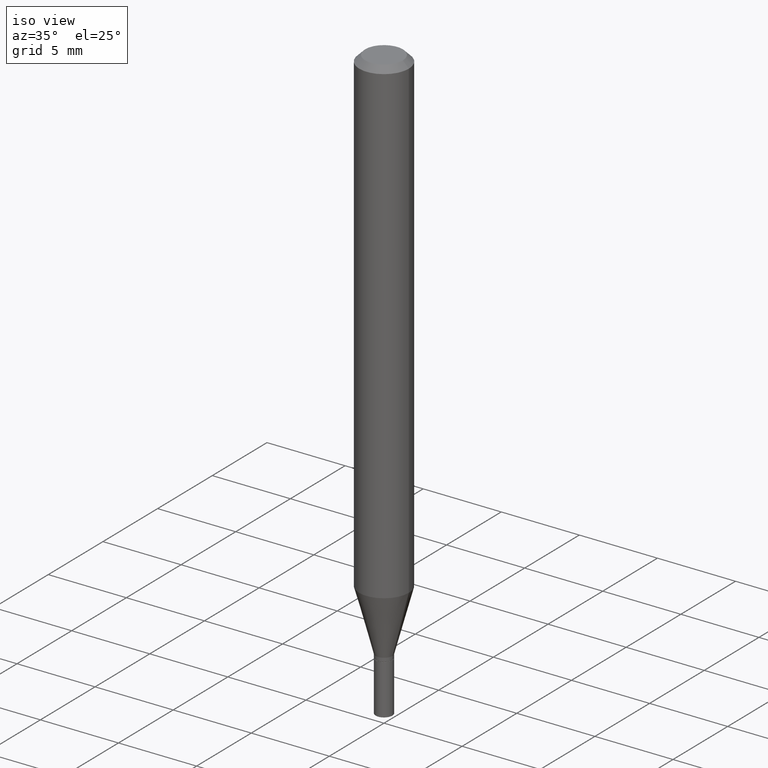
[diagram: clean part render]
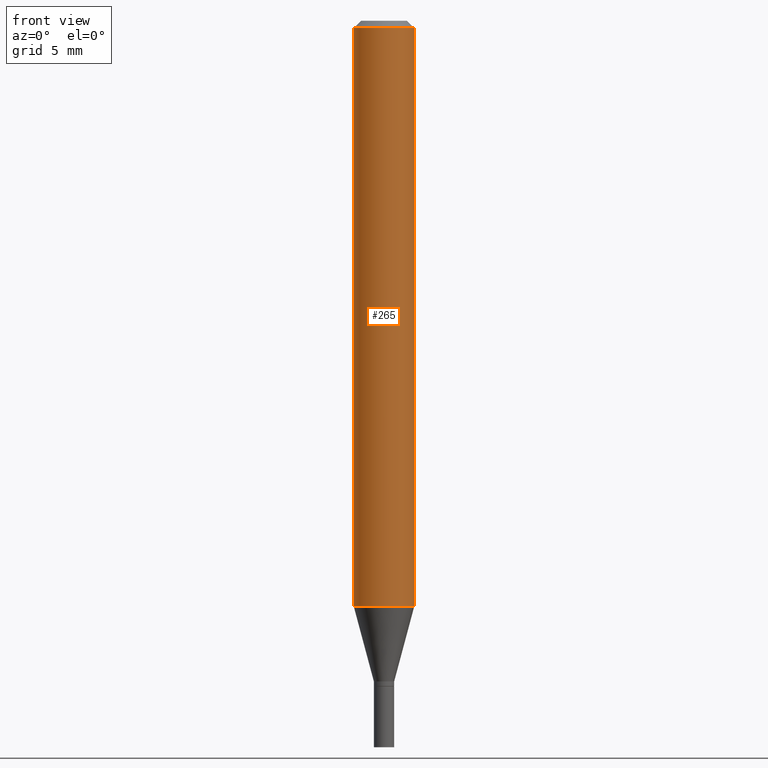
[diagram: tour spotlight — one face highlighted and labeled with its STEP entity id]
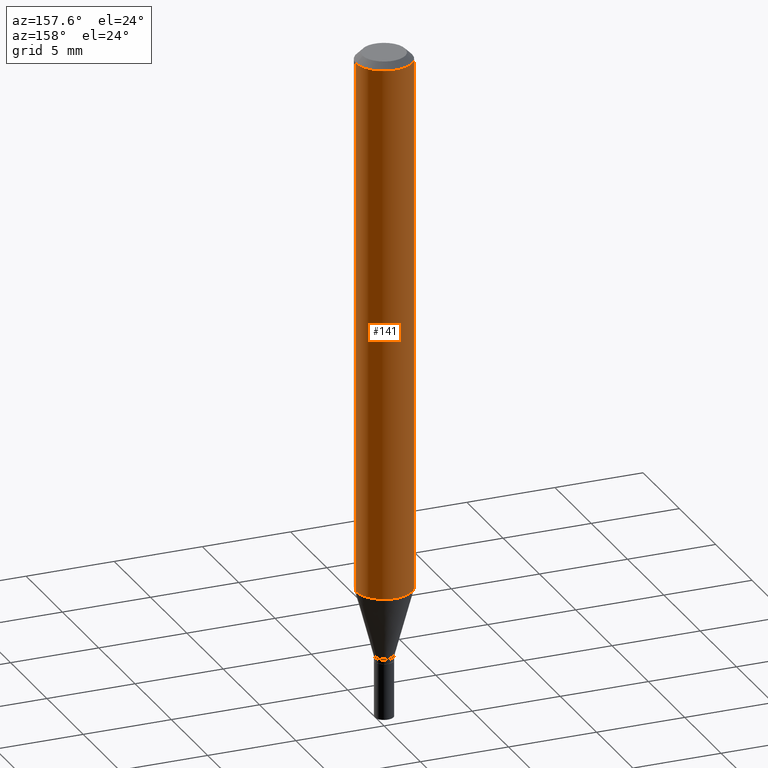
[diagram: tour spotlight — one face highlighted and labeled with its STEP entity id]
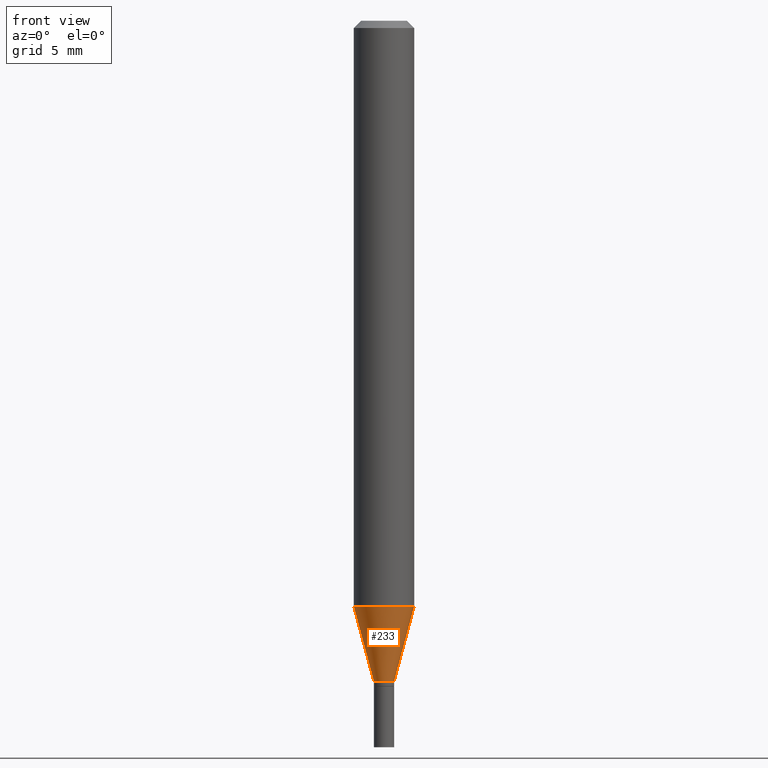
[diagram: tour spotlight — one face highlighted and labeled with its STEP entity id]
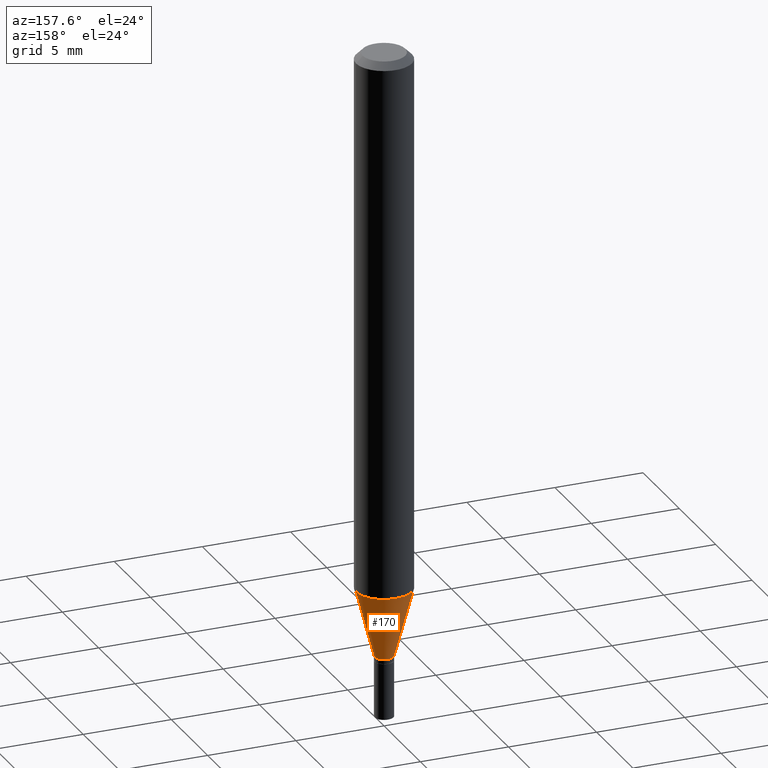
[diagram: tour spotlight — one face highlighted and labeled with its STEP entity id]
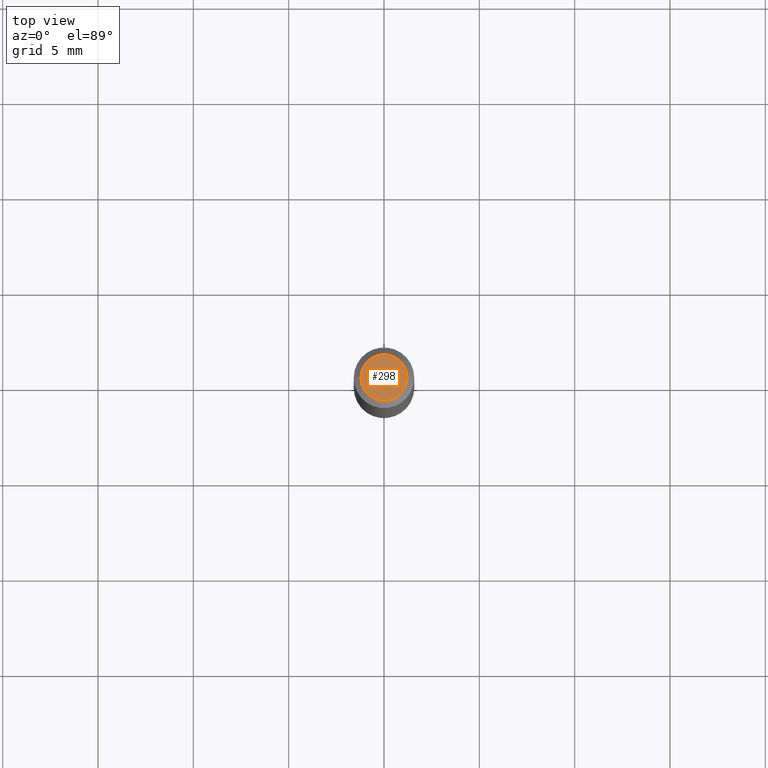
[diagram: tour spotlight — one face highlighted and labeled with its STEP entity id]
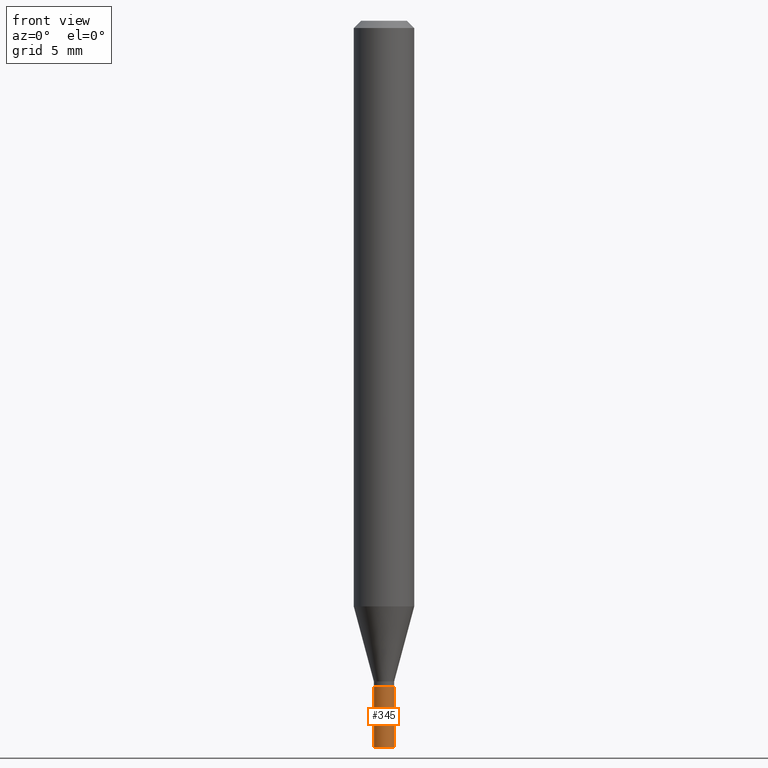
[diagram: tour spotlight — one face highlighted and labeled with its STEP entity id]
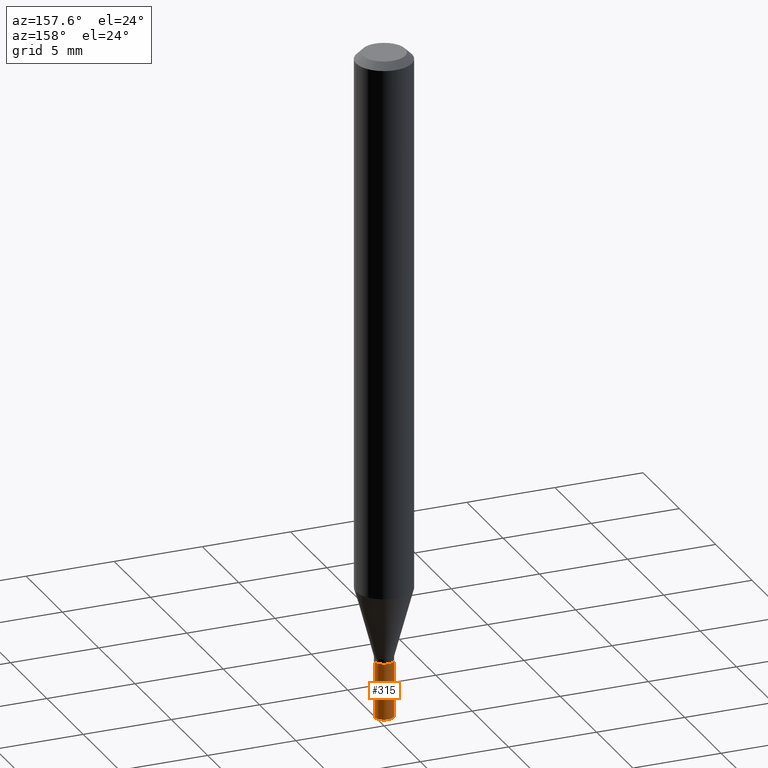
[diagram: tour spotlight — one face highlighted and labeled with its STEP entity id]
A machine part: a face-by-face anatomy tour. The part has 16 B-rep faces; the first image is the clean iso view, then the 7 largest visible faces are spotlighted one at a time (largest first), each with its STEP entity span.

Face 1 — front view, entity #265. In plain terms, the highlighted cylindrical surface (edge-blend (fillet) strip) has radius 1.5875 mm, axis along (-0, 0, 1).
Definition (entity closure, byte-faithful):
#22 = DIRECTION ( 'NONE',  ( -2.445468806185136877E-29, 3.491481338843145188E-15, 1.000000000000000000 ) ) ;
#35 = DIRECTION ( 'NONE',  ( -2.445468806185136597E-29, 3.491481338843145583E-15, 1.000000000000000000 ) ) ;
#40 = ORIENTED_EDGE ( 'NONE', *, *, #459, .F. ) ;
#58 = AXIS2_PLACEMENT_3D ( 'NONE', #391, #70, #102 ) ;
#60 = DIRECTION ( 'NONE',  ( -2.445468806185136597E-29, 3.491481338843145583E-15, 1.000000000000000000 ) ) ;
#70 = DIRECTION ( 'NONE',  ( -2.445468806185136597E-29, 3.491481338843145583E-15, 1.000000000000000000 ) ) ;
#82 = EDGE_CURVE ( 'NONE', #144, #234, #417, .T. ) ;
#102 = DIRECTION ( 'NONE',  ( 1.000000000000000000, -6.982962677686266711E-15, 4.876176775795935793E-29 ) ) ;
#106 = DIRECTION ( 'NONE',  ( 1.000000000000000000, -6.982962677686270655E-15, 0.000000000000000000 ) ) ;
#126 = CIRCLE ( 'NONE', #317, 0.06250000000000000000 ) ;
#129 = DIRECTION ( 'NONE',  ( -2.445468806185136877E-29, 3.491481338843145188E-15, 1.000000000000000000 ) ) ;
#144 = VERTEX_POINT ( 'NONE', #384 ) ;
#163 = VECTOR ( 'NONE', #22, 39.37007874015748143 ) ;
#178 = CARTESIAN_POINT ( 'NONE',  ( 0.06250000000000000000, -4.888073874380388472E-16, -0.01499999999999999944 ) ) ;
#184 = EDGE_CURVE ( 'NONE', #432, #287, #272, .T. ) ;
#213 = VECTOR ( 'NONE', #129, 39.37007874015748143 ) ;
#214 = CYLINDRICAL_SURFACE ( 'NONE', #58, 0.06250000000000000000 ) ;
#218 = CARTESIAN_POINT ( 'NONE',  ( -0.06250000000000000000, -1.692906668964781127E-15, -0.01499999999999999944 ) ) ;
#234 = VERTEX_POINT ( 'NONE', #178 ) ;
#265 = ADVANCED_FACE ( 'NONE', ( #427 ), #214, .T. ) ;
#272 = LINE ( 'NONE', #458, #213 ) ;
#275 = CARTESIAN_POINT ( 'NONE',  ( 3.668203209277705088E-31, -5.237222008264718399E-17, -0.01499999999999999944 ) ) ;
#282 = EDGE_CURVE ( 'NONE', #432, #144, #126, .T. ) ;
#287 = VERTEX_POINT ( 'NONE', #218 ) ;
#301 = AXIS2_PLACEMENT_3D ( 'NONE', #275, #60, #313 ) ;
#309 = CARTESIAN_POINT ( 'NONE',  ( 0.06250000000000000000, -4.364351673553916694E-16, 3.047610484872459871E-30 ) ) ;
#313 = DIRECTION ( 'NONE',  ( 1.000000000000000000, -6.982962677686266711E-15, 0.000000000000000000 ) ) ;
#317 = AXIS2_PLACEMENT_3D ( 'NONE', #431, #35, #106 ) ;
#362 = ORIENTED_EDGE ( 'NONE', *, *, #82, .T. ) ;
#384 = CARTESIAN_POINT ( 'NONE',  ( 0.06249999999999999306, -4.658054704902432076E-15, -1.209119891485891607 ) ) ;
#386 = CARTESIAN_POINT ( 'NONE',  ( -0.06249999999999999306, -3.777530327696978579E-15, -1.209119891485891607 ) ) ;
#391 = CARTESIAN_POINT ( 'NONE',  ( 0.000000000000000000, 0.000000000000000000, 0.000000000000000000 ) ) ;
#406 = EDGE_LOOP ( 'NONE', ( #447, #419, #362, #40 ) ) ;
#417 = LINE ( 'NONE', #309, #163 ) ;
#419 = ORIENTED_EDGE ( 'NONE', *, *, #282, .T. ) ;
#427 = FACE_OUTER_BOUND ( 'NONE', #406, .T. ) ;
#431 = CARTESIAN_POINT ( 'NONE',  ( 2.956864977566705326E-29, -4.221619537547040407E-15, -1.209119891485891607 ) ) ;
#432 = VERTEX_POINT ( 'NONE', #386 ) ;
#447 = ORIENTED_EDGE ( 'NONE', *, *, #184, .F. ) ;
#451 = CIRCLE ( 'NONE', #301, 0.06250000000000000000 ) ;
#458 = CARTESIAN_POINT ( 'NONE',  ( -0.06250000000000000000, 4.440892098500626162E-16, -3.074334431409316114E-30 ) ) ;
#459 = EDGE_CURVE ( 'NONE', #287, #234, #451, .T. ) ;

Face 2 — auxiliary view, entity #141. In plain terms, the highlighted cylindrical surface (edge-blend (fillet) strip) has radius 1.5875 mm, axis along (-0, 0, 1).
Definition (entity closure, byte-faithful):
#6 = DIRECTION ( 'NONE',  ( -2.445468806185136597E-29, 3.491481338843145583E-15, 1.000000000000000000 ) ) ;
#19 = EDGE_CURVE ( 'NONE', #234, #287, #138, .T. ) ;
#22 = DIRECTION ( 'NONE',  ( -2.445468806185136877E-29, 3.491481338843145188E-15, 1.000000000000000000 ) ) ;
#82 = EDGE_CURVE ( 'NONE', #144, #234, #417, .T. ) ;
#103 = AXIS2_PLACEMENT_3D ( 'NONE', #159, #167, #343 ) ;
#129 = DIRECTION ( 'NONE',  ( -2.445468806185136877E-29, 3.491481338843145188E-15, 1.000000000000000000 ) ) ;
#138 = CIRCLE ( 'NONE', #393, 0.06250000000000000000 ) ;
#141 = ADVANCED_FACE ( 'NONE', ( #202 ), #236, .T. ) ;
#144 = VERTEX_POINT ( 'NONE', #384 ) ;
#146 = AXIS2_PLACEMENT_3D ( 'NONE', #166, #311, #452 ) ;
#149 = ORIENTED_EDGE ( 'NONE', *, *, #19, .F. ) ;
#159 = CARTESIAN_POINT ( 'NONE',  ( 0.000000000000000000, 0.000000000000000000, 0.000000000000000000 ) ) ;
#163 = VECTOR ( 'NONE', #22, 39.37007874015748143 ) ;
#166 = CARTESIAN_POINT ( 'NONE',  ( 2.956864977566705326E-29, -4.221619537547040407E-15, -1.209119891485891607 ) ) ;
#167 = DIRECTION ( 'NONE',  ( -2.445468806185136597E-29, 3.491481338843145583E-15, 1.000000000000000000 ) ) ;
#178 = CARTESIAN_POINT ( 'NONE',  ( 0.06250000000000000000, -4.888073874380388472E-16, -0.01499999999999999944 ) ) ;
#184 = EDGE_CURVE ( 'NONE', #432, #287, #272, .T. ) ;
#202 = FACE_OUTER_BOUND ( 'NONE', #267, .T. ) ;
#203 = ORIENTED_EDGE ( 'NONE', *, *, #457, .T. ) ;
#213 = VECTOR ( 'NONE', #129, 39.37007874015748143 ) ;
#218 = CARTESIAN_POINT ( 'NONE',  ( -0.06250000000000000000, -1.692906668964781127E-15, -0.01499999999999999944 ) ) ;
#232 = ORIENTED_EDGE ( 'NONE', *, *, #184, .T. ) ;
#234 = VERTEX_POINT ( 'NONE', #178 ) ;
#235 = ORIENTED_EDGE ( 'NONE', *, *, #82, .F. ) ;
#236 = CYLINDRICAL_SURFACE ( 'NONE', #103, 0.06250000000000000000 ) ;
#267 = EDGE_LOOP ( 'NONE', ( #203, #232, #149, #235 ) ) ;
#272 = LINE ( 'NONE', #458, #213 ) ;
#287 = VERTEX_POINT ( 'NONE', #218 ) ;
#295 = CIRCLE ( 'NONE', #146, 0.06250000000000000000 ) ;
#309 = CARTESIAN_POINT ( 'NONE',  ( 0.06250000000000000000, -4.364351673553916694E-16, 3.047610484872459871E-30 ) ) ;
#311 = DIRECTION ( 'NONE',  ( -2.445468806185136597E-29, 3.491481338843145583E-15, 1.000000000000000000 ) ) ;
#343 = DIRECTION ( 'NONE',  ( 1.000000000000000000, -6.982962677686266711E-15, 4.876176775795935793E-29 ) ) ;
#365 = CARTESIAN_POINT ( 'NONE',  ( 3.668203209277705088E-31, -5.237222008264718399E-17, -0.01499999999999999944 ) ) ;
#384 = CARTESIAN_POINT ( 'NONE',  ( 0.06249999999999999306, -4.658054704902432076E-15, -1.209119891485891607 ) ) ;
#386 = CARTESIAN_POINT ( 'NONE',  ( -0.06249999999999999306, -3.777530327696978579E-15, -1.209119891485891607 ) ) ;
#393 = AXIS2_PLACEMENT_3D ( 'NONE', #365, #6, #441 ) ;
#417 = LINE ( 'NONE', #309, #163 ) ;
#432 = VERTEX_POINT ( 'NONE', #386 ) ;
#441 = DIRECTION ( 'NONE',  ( 1.000000000000000000, -6.982962677686266711E-15, 0.000000000000000000 ) ) ;
#452 = DIRECTION ( 'NONE',  ( 1.000000000000000000, -6.982962677686270655E-15, 0.000000000000000000 ) ) ;
#457 = EDGE_CURVE ( 'NONE', #144, #432, #295, .T. ) ;
#458 = CARTESIAN_POINT ( 'NONE',  ( -0.06250000000000000000, 4.440892098500626162E-16, -3.074334431409316114E-30 ) ) ;

Face 3 — front view, entity #233. In plain terms, the highlighted conical surface has half-angle 15 deg.
Definition (entity closure, byte-faithful):
#3 = FACE_OUTER_BOUND ( 'NONE', #51, .T. ) ;
#8 = AXIS2_PLACEMENT_3D ( 'NONE', #279, #140, #26 ) ;
#26 = DIRECTION ( 'NONE',  ( 1.000000000000000000, -6.982962677686268288E-15, 0.000000000000000000 ) ) ;
#27 = DIRECTION ( 'NONE',  ( 0.2588190451025213501, 1.565188264969621968E-15, 0.9659258262890682012 ) ) ;
#30 = LINE ( 'NONE', #353, #88 ) ;
#35 = DIRECTION ( 'NONE',  ( -2.445468806185136597E-29, 3.491481338843145583E-15, 1.000000000000000000 ) ) ;
#51 = EDGE_LOOP ( 'NONE', ( #268, #241, #142, #225 ) ) ;
#57 = CARTESIAN_POINT ( 'NONE',  ( 0.02099999999999991804, -4.909022762413462095E-15, -1.363999999999999879 ) ) ;
#67 = CARTESIAN_POINT ( 'NONE',  ( 0.02099999999999991804, -4.909022762413462095E-15, -1.363999999999999879 ) ) ;
#73 = CONICAL_SURFACE ( 'NONE', #8, 0.02099999999999991804, 0.2617993877991500740 ) ;
#81 = VERTEX_POINT ( 'NONE', #57 ) ;
#88 = VECTOR ( 'NONE', #280, 39.37007874015747433 ) ;
#92 = DIRECTION ( 'NONE',  ( -2.445468806185136597E-29, 3.491481338843145583E-15, 1.000000000000000000 ) ) ;
#105 = LINE ( 'NONE', #67, #355 ) ;
#106 = DIRECTION ( 'NONE',  ( 1.000000000000000000, -6.982962677686270655E-15, 0.000000000000000000 ) ) ;
#109 = AXIS2_PLACEMENT_3D ( 'NONE', #135, #92, #127 ) ;
#126 = CIRCLE ( 'NONE', #317, 0.06250000000000000000 ) ;
#127 = DIRECTION ( 'NONE',  ( 1.000000000000000000, -6.982962677686268288E-15, 0.000000000000000000 ) ) ;
#135 = CARTESIAN_POINT ( 'NONE',  ( 3.335619451636526233E-29, -4.762380546182051062E-15, -1.363999999999999879 ) ) ;
#140 = DIRECTION ( 'NONE',  ( -2.445468806185136597E-29, 3.491481338843145583E-15, 1.000000000000000000 ) ) ;
#142 = ORIENTED_EDGE ( 'NONE', *, *, #336, .T. ) ;
#144 = VERTEX_POINT ( 'NONE', #384 ) ;
#177 = EDGE_CURVE ( 'NONE', #293, #81, #322, .T. ) ;
#225 = ORIENTED_EDGE ( 'NONE', *, *, #282, .F. ) ;
#233 = ADVANCED_FACE ( 'NONE', ( #3 ), #73, .T. ) ;
#240 = EDGE_CURVE ( 'NONE', #293, #432, #30, .T. ) ;
#241 = ORIENTED_EDGE ( 'NONE', *, *, #177, .T. ) ;
#268 = ORIENTED_EDGE ( 'NONE', *, *, #240, .F. ) ;
#279 = CARTESIAN_POINT ( 'NONE',  ( 3.335619451636526233E-29, -4.762380546182051062E-15, -1.363999999999999879 ) ) ;
#280 = DIRECTION ( 'NONE',  ( -0.2588190451025213501, 5.211531920934551042E-15, 0.9659258262890682012 ) ) ;
#282 = EDGE_CURVE ( 'NONE', #432, #144, #126, .T. ) ;
#293 = VERTEX_POINT ( 'NONE', #321 ) ;
#317 = AXIS2_PLACEMENT_3D ( 'NONE', #431, #35, #106 ) ;
#321 = CARTESIAN_POINT ( 'NONE',  ( -0.02099999999999991804, -4.195348449684704235E-15, -1.363999999999999879 ) ) ;
#322 = CIRCLE ( 'NONE', #109, 0.02099999999999991804 ) ;
#336 = EDGE_CURVE ( 'NONE', #81, #144, #105, .T. ) ;
#353 = CARTESIAN_POINT ( 'NONE',  ( -0.02099999999999991804, -4.613166571672430680E-15, -1.363999999999999879 ) ) ;
#355 = VECTOR ( 'NONE', #27, 39.37007874015747433 ) ;
#384 = CARTESIAN_POINT ( 'NONE',  ( 0.06249999999999999306, -4.658054704902432076E-15, -1.209119891485891607 ) ) ;
#386 = CARTESIAN_POINT ( 'NONE',  ( -0.06249999999999999306, -3.777530327696978579E-15, -1.209119891485891607 ) ) ;
#431 = CARTESIAN_POINT ( 'NONE',  ( 2.956864977566705326E-29, -4.221619537547040407E-15, -1.209119891485891607 ) ) ;
#432 = VERTEX_POINT ( 'NONE', #386 ) ;

Face 4 — auxiliary view, entity #170. In plain terms, the highlighted conical surface has half-angle 15 deg.
Definition (entity closure, byte-faithful):
#27 = DIRECTION ( 'NONE',  ( 0.2588190451025213501, 1.565188264969621968E-15, 0.9659258262890682012 ) ) ;
#30 = LINE ( 'NONE', #353, #88 ) ;
#57 = CARTESIAN_POINT ( 'NONE',  ( 0.02099999999999991804, -4.909022762413462095E-15, -1.363999999999999879 ) ) ;
#64 = DIRECTION ( 'NONE',  ( 1.000000000000000000, -6.982962677686268288E-15, 0.000000000000000000 ) ) ;
#67 = CARTESIAN_POINT ( 'NONE',  ( 0.02099999999999991804, -4.909022762413462095E-15, -1.363999999999999879 ) ) ;
#81 = VERTEX_POINT ( 'NONE', #57 ) ;
#88 = VECTOR ( 'NONE', #280, 39.37007874015747433 ) ;
#100 = DIRECTION ( 'NONE',  ( 1.000000000000000000, -6.982962677686268288E-15, 0.000000000000000000 ) ) ;
#105 = LINE ( 'NONE', #67, #355 ) ;
#122 = ORIENTED_EDGE ( 'NONE', *, *, #240, .T. ) ;
#124 = FACE_OUTER_BOUND ( 'NONE', #264, .T. ) ;
#144 = VERTEX_POINT ( 'NONE', #384 ) ;
#146 = AXIS2_PLACEMENT_3D ( 'NONE', #166, #311, #452 ) ;
#166 = CARTESIAN_POINT ( 'NONE',  ( 2.956864977566705326E-29, -4.221619537547040407E-15, -1.209119891485891607 ) ) ;
#170 = ADVANCED_FACE ( 'NONE', ( #124 ), #227, .T. ) ;
#205 = CARTESIAN_POINT ( 'NONE',  ( 3.335619451636526233E-29, -4.762380546182051062E-15, -1.363999999999999879 ) ) ;
#227 = CONICAL_SURFACE ( 'NONE', #414, 0.02099999999999991804, 0.2617993877991500740 ) ;
#230 = ORIENTED_EDGE ( 'NONE', *, *, #260, .T. ) ;
#240 = EDGE_CURVE ( 'NONE', #293, #432, #30, .T. ) ;
#260 = EDGE_CURVE ( 'NONE', #81, #293, #444, .T. ) ;
#264 = EDGE_LOOP ( 'NONE', ( #230, #122, #373, #333 ) ) ;
#270 = DIRECTION ( 'NONE',  ( -2.445468806185136597E-29, 3.491481338843145583E-15, 1.000000000000000000 ) ) ;
#280 = DIRECTION ( 'NONE',  ( -0.2588190451025213501, 5.211531920934551042E-15, 0.9659258262890682012 ) ) ;
#293 = VERTEX_POINT ( 'NONE', #321 ) ;
#295 = CIRCLE ( 'NONE', #146, 0.06250000000000000000 ) ;
#311 = DIRECTION ( 'NONE',  ( -2.445468806185136597E-29, 3.491481338843145583E-15, 1.000000000000000000 ) ) ;
#320 = CARTESIAN_POINT ( 'NONE',  ( 3.335619451636526233E-29, -4.762380546182051062E-15, -1.363999999999999879 ) ) ;
#321 = CARTESIAN_POINT ( 'NONE',  ( -0.02099999999999991804, -4.195348449684704235E-15, -1.363999999999999879 ) ) ;
#333 = ORIENTED_EDGE ( 'NONE', *, *, #336, .F. ) ;
#334 = AXIS2_PLACEMENT_3D ( 'NONE', #320, #466, #100 ) ;
#336 = EDGE_CURVE ( 'NONE', #81, #144, #105, .T. ) ;
#353 = CARTESIAN_POINT ( 'NONE',  ( -0.02099999999999991804, -4.613166571672430680E-15, -1.363999999999999879 ) ) ;
#355 = VECTOR ( 'NONE', #27, 39.37007874015747433 ) ;
#373 = ORIENTED_EDGE ( 'NONE', *, *, #457, .F. ) ;
#384 = CARTESIAN_POINT ( 'NONE',  ( 0.06249999999999999306, -4.658054704902432076E-15, -1.209119891485891607 ) ) ;
#386 = CARTESIAN_POINT ( 'NONE',  ( -0.06249999999999999306, -3.777530327696978579E-15, -1.209119891485891607 ) ) ;
#414 = AXIS2_PLACEMENT_3D ( 'NONE', #205, #270, #64 ) ;
#432 = VERTEX_POINT ( 'NONE', #386 ) ;
#444 = CIRCLE ( 'NONE', #334, 0.02099999999999991804 ) ;
#452 = DIRECTION ( 'NONE',  ( 1.000000000000000000, -6.982962677686270655E-15, 0.000000000000000000 ) ) ;
#457 = EDGE_CURVE ( 'NONE', #144, #432, #295, .T. ) ;
#466 = DIRECTION ( 'NONE',  ( -2.445468806185136597E-29, 3.491481338843145583E-15, 1.000000000000000000 ) ) ;

Face 5 — top view, entity #298. In plain terms, the highlighted planar face has unit normal (0, -0, -1).
Definition (entity closure, byte-faithful):
#10 = ORIENTED_EDGE ( 'NONE', *, *, #350, .T. ) ;
#55 = EDGE_LOOP ( 'NONE', ( #10, #195 ) ) ;
#68 = CARTESIAN_POINT ( 'NONE',  ( 4.865611903635008365E-45, -6.946804277620623666E-31, -1.989643822619527736E-16 ) ) ;
#72 = DIRECTION ( 'NONE',  ( -1.000000000000000000, 6.982962677686265922E-15, -4.876176775795935793E-29 ) ) ;
#85 = VERTEX_POINT ( 'NONE', #423 ) ;
#87 = CARTESIAN_POINT ( 'NONE',  ( 0.04749999999999999362, -4.035134999187581581E-16, -1.989643822619502098E-16 ) ) ;
#91 = EDGE_CURVE ( 'NONE', #231, #85, #300, .T. ) ;
#133 = AXIS2_PLACEMENT_3D ( 'NONE', #360, #136, #72 ) ;
#136 = DIRECTION ( 'NONE',  ( 2.438088387897960049E-29, -3.491481338843145188E-15, -1.000000000000000000 ) ) ;
#164 = AXIS2_PLACEMENT_3D ( 'NONE', #68, #216, #357 ) ;
#176 = FACE_OUTER_BOUND ( 'NONE', #55, .T. ) ;
#195 = ORIENTED_EDGE ( 'NONE', *, *, #91, .T. ) ;
#216 = DIRECTION ( 'NONE',  ( -2.445468806185136597E-29, 3.491481338843145583E-15, 1.000000000000000000 ) ) ;
#231 = VERTEX_POINT ( 'NONE', #87 ) ;
#246 = DIRECTION ( 'NONE',  ( 1.000000000000000000, -6.982962677686267499E-15, 4.852736867747366768E-29 ) ) ;
#251 = CIRCLE ( 'NONE', #164, 0.04749999999999999362 ) ;
#277 = DIRECTION ( 'NONE',  ( -2.445468806185136597E-29, 3.491481338843145583E-15, 1.000000000000000000 ) ) ;
#298 = ADVANCED_FACE ( 'NONE', ( #176 ), #325, .F. ) ;
#300 = CIRCLE ( 'NONE', #437, 0.04749999999999999362 ) ;
#316 = CARTESIAN_POINT ( 'NONE',  ( 4.865611903635008365E-45, -6.946804277620623666E-31, -1.989643822619527736E-16 ) ) ;
#325 = PLANE ( 'NONE',  #133 ) ;
#350 = EDGE_CURVE ( 'NONE', #85, #231, #251, .T. ) ;
#357 = DIRECTION ( 'NONE',  ( 1.000000000000000000, -6.982962677686267499E-15, 4.852736867747366768E-29 ) ) ;
#360 = CARTESIAN_POINT ( 'NONE',  ( 3.316907271900976096E-16, 0.04749999999999999362, -2.653275547260257586E-16 ) ) ;
#423 = CARTESIAN_POINT ( 'NONE',  ( -0.04749999999999999362, 3.578768372314206562E-16, -1.989643822619551895E-16 ) ) ;
#437 = AXIS2_PLACEMENT_3D ( 'NONE', #316, #277, #246 ) ;

Face 6 — front view, entity #345. In plain terms, the highlighted cylindrical surface (edge-blend (fillet) strip) has radius 0.5334 mm, axis along (-0, 0, 1).
Definition (entity closure, byte-faithful):
#5 = ORIENTED_EDGE ( 'NONE', *, *, #190, .T. ) ;
#11 = CARTESIAN_POINT ( 'NONE',  ( 0.02100000000000000477, -5.383864224496130787E-15, -1.500000000000000222 ) ) ;
#20 = DIRECTION ( 'NONE',  ( -2.445468806185136597E-29, 3.491481338843145583E-15, 1.000000000000000000 ) ) ;
#29 = VERTEX_POINT ( 'NONE', #11 ) ;
#50 = VERTEX_POINT ( 'NONE', #369 ) ;
#61 = CARTESIAN_POINT ( 'NONE',  ( 3.360074139698378339E-29, -4.797295359570482711E-15, -1.374000000000000110 ) ) ;
#74 = AXIS2_PLACEMENT_3D ( 'NONE', #395, #137, #281 ) ;
#75 = ORIENTED_EDGE ( 'NONE', *, *, #383, .F. ) ;
#79 = VECTOR ( 'NONE', #131, 39.37007874015748143 ) ;
#84 = CARTESIAN_POINT ( 'NONE',  ( -0.02100000000000000477, 1.492139745096210730E-16, -1.032976368953530510E-30 ) ) ;
#121 = EDGE_CURVE ( 'NONE', #29, #329, #169, .T. ) ;
#123 = ORIENTED_EDGE ( 'NONE', *, *, #217, .F. ) ;
#131 = DIRECTION ( 'NONE',  ( -2.445468806185136877E-29, 3.491481338843145188E-15, 1.000000000000000000 ) ) ;
#137 = DIRECTION ( 'NONE',  ( -2.445468806185136597E-29, 3.491481338843145583E-15, 1.000000000000000000 ) ) ;
#169 = LINE ( 'NONE', #209, #79 ) ;
#179 = ORIENTED_EDGE ( 'NONE', *, *, #121, .T. ) ;
#190 = EDGE_CURVE ( 'NONE', #291, #29, #399, .T. ) ;
#208 = AXIS2_PLACEMENT_3D ( 'NONE', #61, #20, #413 ) ;
#209 = CARTESIAN_POINT ( 'NONE',  ( 0.02100000000000000477, -1.466422162314116246E-16, 1.023997122917146650E-30 ) ) ;
#210 = CARTESIAN_POINT ( 'NONE',  ( 3.668203209277704895E-29, -5.237222008264718177E-15, -1.500000000000000222 ) ) ;
#212 = FACE_OUTER_BOUND ( 'NONE', #299, .T. ) ;
#217 = EDGE_CURVE ( 'NONE', #50, #329, #294, .T. ) ;
#242 = DIRECTION ( 'NONE',  ( 1.000000000000000000, -6.982962677686284854E-15, 0.000000000000000000 ) ) ;
#248 = CARTESIAN_POINT ( 'NONE',  ( 0.02100000000000000477, -4.943937575801894533E-15, -1.374000000000000110 ) ) ;
#281 = DIRECTION ( 'NONE',  ( 1.000000000000000000, -6.982962677686265922E-15, 4.876176775795935232E-29 ) ) ;
#284 = VECTOR ( 'NONE', #342, 39.37007874015748143 ) ;
#291 = VERTEX_POINT ( 'NONE', #318 ) ;
#294 = CIRCLE ( 'NONE', #208, 0.02100000000000000477 ) ;
#299 = EDGE_LOOP ( 'NONE', ( #75, #5, #179, #123 ) ) ;
#318 = CARTESIAN_POINT ( 'NONE',  ( -0.02100000000000000477, -4.868044709407979667E-15, -1.500000000000000222 ) ) ;
#329 = VERTEX_POINT ( 'NONE', #248 ) ;
#342 = DIRECTION ( 'NONE',  ( -2.445468806185136877E-29, 3.491481338843145188E-15, 1.000000000000000000 ) ) ;
#345 = ADVANCED_FACE ( 'NONE', ( #212 ), #465, .T. ) ;
#347 = AXIS2_PLACEMENT_3D ( 'NONE', #210, #349, #242 ) ;
#349 = DIRECTION ( 'NONE',  ( -2.445468806185136597E-29, 3.491481338843145583E-15, 1.000000000000000000 ) ) ;
#369 = CARTESIAN_POINT ( 'NONE',  ( -0.02100000000000000477, -4.868044709407979667E-15, -1.374000000000000110 ) ) ;
#383 = EDGE_CURVE ( 'NONE', #291, #50, #409, .T. ) ;
#395 = CARTESIAN_POINT ( 'NONE',  ( 0.000000000000000000, 0.000000000000000000, 0.000000000000000000 ) ) ;
#399 = CIRCLE ( 'NONE', #347, 0.02100000000000000477 ) ;
#409 = LINE ( 'NONE', #84, #284 ) ;
#413 = DIRECTION ( 'NONE',  ( 1.000000000000000000, -6.982962677686284854E-15, 0.000000000000000000 ) ) ;
#465 = CYLINDRICAL_SURFACE ( 'NONE', #74, 0.02100000000000000477 ) ;

Face 7 — auxiliary view, entity #315. In plain terms, the highlighted cylindrical surface (edge-blend (fillet) strip) has radius 0.5334 mm, axis along (-0, 0, 1).
Definition (entity closure, byte-faithful):
#11 = CARTESIAN_POINT ( 'NONE',  ( 0.02100000000000000477, -5.383864224496130787E-15, -1.500000000000000222 ) ) ;
#14 = DIRECTION ( 'NONE',  ( 1.000000000000000000, -6.982962677686284854E-15, 0.000000000000000000 ) ) ;
#18 = DIRECTION ( 'NONE',  ( -2.445468806185136597E-29, 3.491481338843145583E-15, 1.000000000000000000 ) ) ;
#24 = AXIS2_PLACEMENT_3D ( 'NONE', #420, #98, #14 ) ;
#28 = CARTESIAN_POINT ( 'NONE',  ( 0.000000000000000000, 0.000000000000000000, 0.000000000000000000 ) ) ;
#29 = VERTEX_POINT ( 'NONE', #11 ) ;
#50 = VERTEX_POINT ( 'NONE', #369 ) ;
#79 = VECTOR ( 'NONE', #131, 39.37007874015748143 ) ;
#84 = CARTESIAN_POINT ( 'NONE',  ( -0.02100000000000000477, 1.492139745096210730E-16, -1.032976368953530510E-30 ) ) ;
#98 = DIRECTION ( 'NONE',  ( -2.445468806185136597E-29, 3.491481338843145583E-15, 1.000000000000000000 ) ) ;
#107 = FACE_OUTER_BOUND ( 'NONE', #374, .T. ) ;
#116 = ORIENTED_EDGE ( 'NONE', *, *, #206, .F. ) ;
#121 = EDGE_CURVE ( 'NONE', #29, #329, #169, .T. ) ;
#130 = EDGE_CURVE ( 'NONE', #29, #291, #244, .T. ) ;
#131 = DIRECTION ( 'NONE',  ( -2.445468806185136877E-29, 3.491481338843145188E-15, 1.000000000000000000 ) ) ;
#169 = LINE ( 'NONE', #209, #79 ) ;
#171 = CARTESIAN_POINT ( 'NONE',  ( 3.360074139698378339E-29, -4.797295359570482711E-15, -1.374000000000000110 ) ) ;
#180 = AXIS2_PLACEMENT_3D ( 'NONE', #28, #185, #253 ) ;
#185 = DIRECTION ( 'NONE',  ( -2.445468806185136597E-29, 3.491481338843145583E-15, 1.000000000000000000 ) ) ;
#206 = EDGE_CURVE ( 'NONE', #329, #50, #250, .T. ) ;
#209 = CARTESIAN_POINT ( 'NONE',  ( 0.02100000000000000477, -1.466422162314116246E-16, 1.023997122917146650E-30 ) ) ;
#220 = AXIS2_PLACEMENT_3D ( 'NONE', #171, #18, #312 ) ;
#244 = CIRCLE ( 'NONE', #24, 0.02100000000000000477 ) ;
#248 = CARTESIAN_POINT ( 'NONE',  ( 0.02100000000000000477, -4.943937575801894533E-15, -1.374000000000000110 ) ) ;
#250 = CIRCLE ( 'NONE', #220, 0.02100000000000000477 ) ;
#253 = DIRECTION ( 'NONE',  ( 1.000000000000000000, -6.982962677686265922E-15, 4.876176775795935232E-29 ) ) ;
#261 = ORIENTED_EDGE ( 'NONE', *, *, #130, .T. ) ;
#284 = VECTOR ( 'NONE', #342, 39.37007874015748143 ) ;
#291 = VERTEX_POINT ( 'NONE', #318 ) ;
#312 = DIRECTION ( 'NONE',  ( 1.000000000000000000, -6.982962677686284854E-15, 0.000000000000000000 ) ) ;
#315 = ADVANCED_FACE ( 'NONE', ( #107 ), #363, .T. ) ;
#318 = CARTESIAN_POINT ( 'NONE',  ( -0.02100000000000000477, -4.868044709407979667E-15, -1.500000000000000222 ) ) ;
#329 = VERTEX_POINT ( 'NONE', #248 ) ;
#342 = DIRECTION ( 'NONE',  ( -2.445468806185136877E-29, 3.491481338843145188E-15, 1.000000000000000000 ) ) ;
#363 = CYLINDRICAL_SURFACE ( 'NONE', #180, 0.02100000000000000477 ) ;
#369 = CARTESIAN_POINT ( 'NONE',  ( -0.02100000000000000477, -4.868044709407979667E-15, -1.374000000000000110 ) ) ;
#374 = EDGE_LOOP ( 'NONE', ( #261, #443, #116, #378 ) ) ;
#378 = ORIENTED_EDGE ( 'NONE', *, *, #121, .F. ) ;
#383 = EDGE_CURVE ( 'NONE', #291, #50, #409, .T. ) ;
#409 = LINE ( 'NONE', #84, #284 ) ;
#420 = CARTESIAN_POINT ( 'NONE',  ( 3.668203209277704895E-29, -5.237222008264718177E-15, -1.500000000000000222 ) ) ;
#443 = ORIENTED_EDGE ( 'NONE', *, *, #383, .T. ) ;